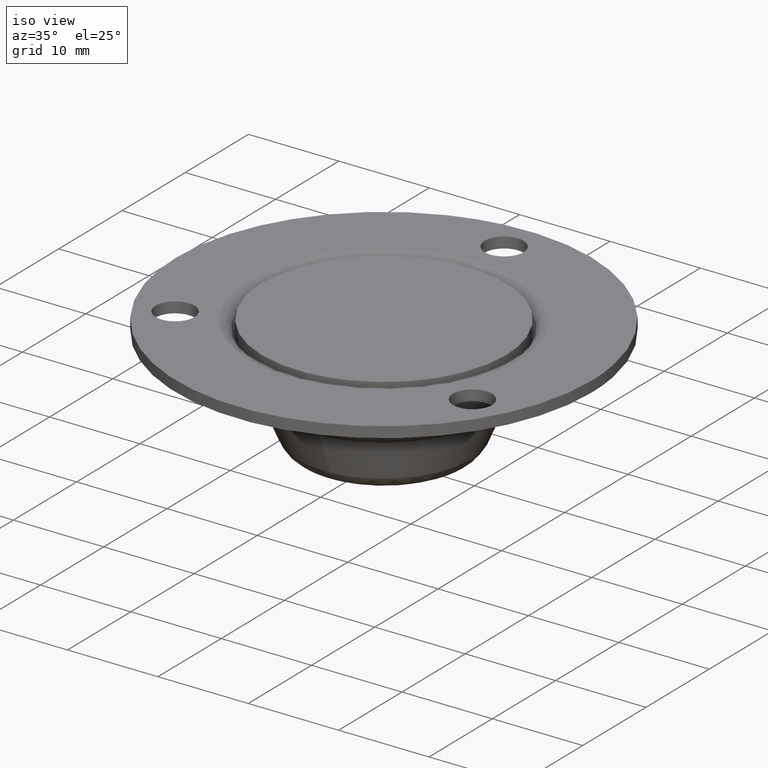
[diagram: clean part render]
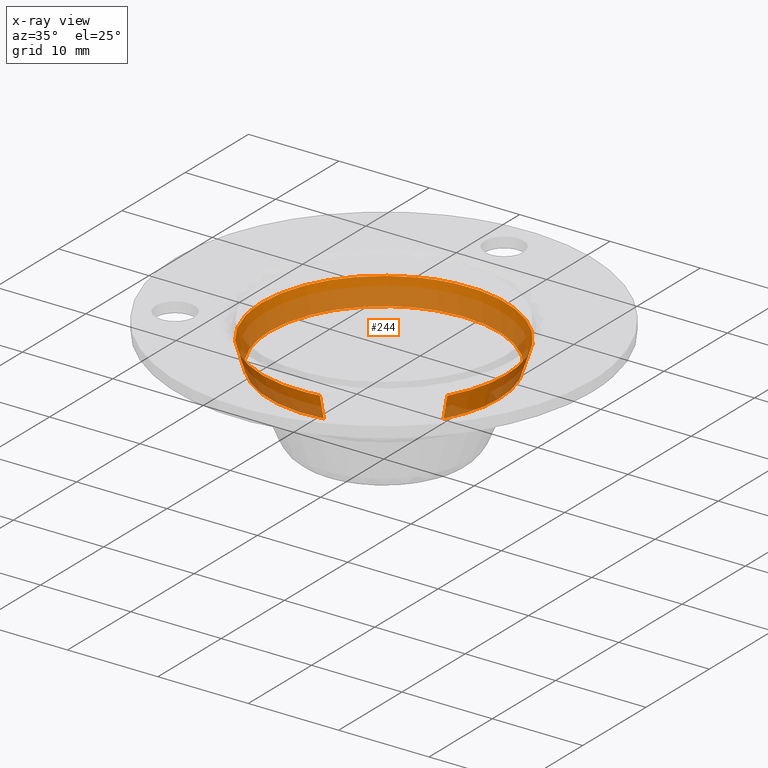
[diagram: x-ray — body ghosted, one internal face saturated and labeled with its STEP entity id]
A machine part, iso view, then the same camera in x-ray: the body is ghosted and one INTERNAL B-rep face — a face not visible from any outside direction — is saturated and labeled: STEP entity #244.
In plain terms, the highlighted face is a freeform B-spline surface patch.
Its self-contained STEP definition (entity closure, byte-faithful):
#44=CARTESIAN_POINT('',(10.977187064408920,-6.288943268795138,8.306542131031732));
#45=CARTESIAN_POINT('',(13.223311896473303,-2.368390737509771,8.306542131031732));
#46=CARTESIAN_POINT('',(12.477563162043880,2.088027974514637,8.306542131031732));
#47=CARTESIAN_POINT('',(10.389535187529244,14.565591136558517,8.306542131031732));
#48=CARTESIAN_POINT('',(-2.088027974514637,12.477563162043880,8.306542131031732));
#49=CARTESIAN_POINT('',(-14.565591136558517,10.389535187529244,8.306542131031732));
#50=CARTESIAN_POINT('',(-12.477563162043880,-2.088027974514637,8.306542131031732));
#51=CARTESIAN_POINT('',(-10.389535187529244,-14.565591136558517,8.306542131031732));
#52=CARTESIAN_POINT('',(2.088027974514637,-12.477563162043880,8.306542131031732));
#53=CARTESIAN_POINT('',(11.732213805062440,-6.721505847034207,11.091048066206749));
#54=CARTESIAN_POINT('',(14.132830338972111,-2.531292064474838,11.091048066206751));
#55=CARTESIAN_POINT('',(13.335787932220351,2.231645546734269,11.091048066206749));
#56=CARTESIAN_POINT('',(11.104142385486078,15.567433478954619,11.091048066206751));
#57=CARTESIAN_POINT('',(-2.231645546734269,13.335787932220351,11.091048066206749));
#58=CARTESIAN_POINT('',(-15.567433478954619,11.104142385486078,11.091048066206751));
#59=CARTESIAN_POINT('',(-13.335787932220351,-2.231645546734269,11.091048066206749));
#60=CARTESIAN_POINT('',(-11.104142385486078,-15.567433478954619,11.091048066206751));
#61=CARTESIAN_POINT('',(2.231645546734269,-13.335787932220351,11.091048066206749));
#69=(BOUNDED_SURFACE()B_SPLINE_SURFACE(2,1,((#44,#53),(#45,#54),(#46,#55),(#47,#56),(#48,#57),(#49,#58),(#50,#59),(#51,#60),(#52,#61)),.UNSPECIFIED.,.F.,.F.,.U.)B_SPLINE_SURFACE_WITH_KNOTS((3,2,2,2,3),(2,2),(0.0,9.857186420862025,32.259882831912087,54.662579242962153,77.065275654012211),(0.0,2.917301675559046),.UNSPECIFIED.)GEOMETRIC_REPRESENTATION_ITEM()RATIONAL_B_SPLINE_SURFACE(((0.855662221768731,0.855662221768731),(0.871126983722081,0.871126983722081),(1.0,1.0),(0.707106781186548,0.707106781186548),(1.0,1.0),(0.707106781186548,0.707106781186548),(1.0,1.0),(0.707106781186548,0.707106781186548),(1.0,1.0)))REPRESENTATION_ITEM('')SURFACE());
#70=CARTESIAN_POINT('',(13.500000000000000,0.0,11.023133287300039));
#71=VERTEX_POINT('',#70);
#72=CARTESIAN_POINT('',(11.713798518704641,-6.710955540248669,11.023133287300190));
#73=VERTEX_POINT('',#72);
#74=CARTESIAN_POINT('',(13.500000000000000,0.0,11.023133287300039));
#75=CARTESIAN_POINT('',(13.500000000000002,-3.593187267129130,11.023133287300043));
#76=CARTESIAN_POINT('',(11.713798518704646,-6.710955540248669,11.023133287300187));
#84=(BOUNDED_CURVE()B_SPLINE_CURVE(2,(#74,#75,#76),.UNSPECIFIED.,.F.,.U.)B_SPLINE_CURVE_WITH_KNOTS((3,3),(0.500000000000000,0.584758082392888),.UNSPECIFIED.)CURVE()GEOMETRIC_REPRESENTATION_ITEM()RATIONAL_B_SPLINE_CURVE((1.0,0.900699729709964,0.868731463346960))REPRESENTATION_ITEM(''));
#85=EDGE_CURVE('',#71,#73,#84,.T.);
#86=ORIENTED_EDGE('',*,*,#85,.T.);
#87=CARTESIAN_POINT('',(10.995153481914500,-6.299236414005121,8.372801501046176));
#88=VERTEX_POINT('',#87);
#89=CARTESIAN_POINT('',(10.995153481914500,-6.299236414005121,8.372801501046176));
#90=CARTESIAN_POINT('',(11.713798518704641,-6.710955540248669,11.023133287300190));
#91=QUASI_UNIFORM_CURVE('',1,(#89,#90),.UNSPECIFIED.,.F.,.U.);
#92=EDGE_CURVE('',#88,#73,#91,.T.);
#93=ORIENTED_EDGE('',*,*,#92,.F.);
#94=CARTESIAN_POINT('',(12.671770968983900,0.0,8.372801501045981));
#95=VERTEX_POINT('',#94);
#96=CARTESIAN_POINT('',(12.671770968983900,0.0,8.372801501045981));
#97=CARTESIAN_POINT('',(12.671770968983898,-3.372744155387764,8.372801501045981));
#98=CARTESIAN_POINT('',(10.995153481914500,-6.299236414005121,8.372801501046176));
#106=(BOUNDED_CURVE()B_SPLINE_CURVE(2,(#96,#97,#98),.UNSPECIFIED.,.F.,.U.)B_SPLINE_CURVE_WITH_KNOTS((3,3),(0.500000000000000,0.584758082392897),.UNSPECIFIED.)CURVE()GEOMETRIC_REPRESENTATION_ITEM()RATIONAL_B_SPLINE_CURVE((1.0,0.900699729709954,0.868731463346954))REPRESENTATION_ITEM(''));
#107=EDGE_CURVE('',#95,#88,#106,.T.);
#108=ORIENTED_EDGE('',*,*,#107,.F.);
#109=CARTESIAN_POINT('',(-2.772597756866573,12.364726962612091,8.372800451916325));
#110=VERTEX_POINT('',#109);
#111=CARTESIAN_POINT('',(-2.772597756866574,12.364726962612094,8.372800451916325));
#112=CARTESIAN_POINT('',(-1.403300198127426,12.671770663252870,8.372800498424237));
#113=CARTESIAN_POINT('',(0.000000064583358,12.671770680966800,8.372800556515717));
#114=CARTESIAN_POINT('',(12.671770997699527,12.671770840923179,8.372801081080546));
#115=CARTESIAN_POINT('',(12.671770968983900,0.0,8.372801501045981));
#123=(BOUNDED_CURVE()B_SPLINE_CURVE(2,(#111,#112,#113,#114,#115),.UNSPECIFIED.,.F.,.U.)B_SPLINE_CURVE_WITH_KNOTS((3,2,3),(0.212563933959278,0.250000000000000,0.500000000000000),.UNSPECIFIED.)CURVE()GEOMETRIC_REPRESENTATION_ITEM()RATIONAL_B_SPLINE_CURVE((0.925417132122978,0.956140920470480,1.0,0.707106781186548,1.0))REPRESENTATION_ITEM(''));
#124=EDGE_CURVE('',#110,#95,#123,.T.);
#125=ORIENTED_EDGE('',*,*,#124,.F.);
#126=CARTESIAN_POINT('',(-12.671770968983900,0.0,8.372801501045981));
#127=VERTEX_POINT('',#126);
#128=CARTESIAN_POINT('',(-12.671770968983900,0.0,8.372801501045981));
#129=CARTESIAN_POINT('',(-12.671770933116170,10.144991472371924,8.372800976481152));
#130=CARTESIAN_POINT('',(-2.772597756866573,12.364726962612091,8.372800451916326));
#138=(BOUNDED_CURVE()B_SPLINE_CURVE(2,(#128,#129,#130),.UNSPECIFIED.,.F.,.U.)B_SPLINE_CURVE_WITH_KNOTS((3,3),(0.0,0.212563933959278),.UNSPECIFIED.)CURVE()GEOMETRIC_REPRESENTATION_ITEM()RATIONAL_B_SPLINE_CURVE((1.0,0.750965860716068,0.925417132122979))REPRESENTATION_ITEM(''));
#139=EDGE_CURVE('',#127,#110,#138,.T.);
#140=ORIENTED_EDGE('',*,*,#139,.F.);
#141=CARTESIAN_POINT('',(-12.503058303315360,-2.060900908406375,8.372801501044785));
#142=VERTEX_POINT('',#141);
#143=CARTESIAN_POINT('',(-12.503058303315361,-2.060900908406375,8.372801501044785));
#144=CARTESIAN_POINT('',(-12.671770968983905,-1.037356163125500,8.372801501045981));
#145=CARTESIAN_POINT('',(-12.671770968983900,0.0,8.372801501045981));
#153=(BOUNDED_CURVE()B_SPLINE_CURVE(2,(#143,#144,#145),.UNSPECIFIED.,.F.,.U.)B_SPLINE_CURVE_WITH_KNOTS((3,3),(0.972006108799167,1.0),.UNSPECIFIED.)CURVE()GEOMETRIC_REPRESENTATION_ITEM()RATIONAL_B_SPLINE_CURVE((0.941751131923223,0.967203116396298,1.0))REPRESENTATION_ITEM(''));
#154=EDGE_CURVE('',#142,#127,#153,.T.);
#155=ORIENTED_EDGE('',*,*,#154,.F.);
#156=CARTESIAN_POINT('',(2.091445455795336,-12.497985252192070,8.372801497030038));
#157=VERTEX_POINT('',#156);
#158=CARTESIAN_POINT('',(2.091445455795336,-12.497985252192068,8.372801497030038));
#159=CARTESIAN_POINT('',(1.052942965410974,-12.671770968983898,8.372801501045981));
#160=CARTESIAN_POINT('',(0.0,-12.671770968983900,8.372801501045981));
#161=CARTESIAN_POINT('',(-10.754050083370176,-12.671770968983902,8.372801501045981));
#162=CARTESIAN_POINT('',(-12.503058303315361,-2.060900908406375,8.372801501044785));
#170=(BOUNDED_CURVE()B_SPLINE_CURVE(2,(#158,#159,#160,#161,#162),.UNSPECIFIED.,.F.,.U.)B_SPLINE_CURVE_WITH_KNOTS((3,2,3),(0.721599481876868,0.750000000000000,0.972006108799168),.UNSPECIFIED.)CURVE()GEOMETRIC_REPRESENTATION_ITEM()RATIONAL_B_SPLINE_CURVE((0.941013273025640,0.966726723323784,1.0,0.739903664790249,0.941751131923224))REPRESENTATION_ITEM(''));
#171=EDGE_CURVE('',#157,#142,#170,.T.);
#172=ORIENTED_EDGE('',*,*,#171,.F.);
#173=CARTESIAN_POINT('',(2.228142679132356,-13.314855620751210,11.023133287302530));
#174=VERTEX_POINT('',#173);
#175=CARTESIAN_POINT('',(2.091445455795336,-12.497985252192070,8.372801497030038));
#176=CARTESIAN_POINT('',(2.228142679132356,-13.314855620751210,11.023133287302530));
#177=QUASI_UNIFORM_CURVE('',1,(#175,#176),.UNSPECIFIED.,.F.,.U.);
#178=EDGE_CURVE('',#157,#174,#177,.T.);
#179=ORIENTED_EDGE('',*,*,#178,.T.);
#180=CARTESIAN_POINT('',(0.824138312267012,-13.474820816692320,11.023133287299981));
#181=VERTEX_POINT('',#180);
#182=CARTESIAN_POINT('',(2.228142679132356,-13.314855620751208,11.023133287302533));
#183=CARTESIAN_POINT('',(1.530332256554981,-13.431629037510131,11.023133287300048));
#184=CARTESIAN_POINT('',(0.824138312267012,-13.474820816692322,11.023133287299984));
#192=(BOUNDED_CURVE()B_SPLINE_CURVE(2,(#182,#183,#184),.UNSPECIFIED.,.F.,.U.)B_SPLINE_CURVE_WITH_KNOTS((3,3),(0.721599481758263,0.739333179563636),.UNSPECIFIED.)CURVE()GEOMETRIC_REPRESENTATION_ITEM()RATIONAL_B_SPLINE_CURVE((0.941013272810874,0.957069126249318,0.976072507435347))REPRESENTATION_ITEM(''));
#193=EDGE_CURVE('',#174,#181,#192,.T.);
#194=ORIENTED_EDGE('',*,*,#193,.T.);
#195=CARTESIAN_POINT('',(-13.500000000000000,0.0,11.023133287300039));
#196=VERTEX_POINT('',#195);
#197=CARTESIAN_POINT('',(0.824138312267012,-13.474820816692322,11.023133287299984));
#198=CARTESIAN_POINT('',(0.412453795011837,-13.499999999999998,11.023133287300046));
#199=CARTESIAN_POINT('',(0.0,-13.500000000000000,11.023133287300039));
#200=CARTESIAN_POINT('',(-13.500000000000000,-13.500000000000000,11.023133287300041));
#201=CARTESIAN_POINT('',(-13.500000000000000,0.0,11.023133287300039));
#209=(BOUNDED_CURVE()B_SPLINE_CURVE(2,(#197,#198,#199,#200,#201),.UNSPECIFIED.,.F.,.U.)B_SPLINE_CURVE_WITH_KNOTS((3,2,3),(0.739333179563636,0.750000000000000,1.0),.UNSPECIFIED.)CURVE()GEOMETRIC_REPRESENTATION_ITEM()RATIONAL_B_SPLINE_CURVE((0.976072507435347,0.987503042511553,1.0,0.707106781186548,1.0))REPRESENTATION_ITEM(''));
#210=EDGE_CURVE('',#181,#196,#209,.T.);
#211=ORIENTED_EDGE('',*,*,#210,.T.);
#212=CARTESIAN_POINT('',(-1.593447977863204,13.405630292591219,11.023133287300411));
#213=VERTEX_POINT('',#212);
#214=CARTESIAN_POINT('',(-13.500000000000000,0.0,11.023133287300039));
#215=CARTESIAN_POINT('',(-13.499999999999996,11.990368881616748,11.023133287300039));
#216=CARTESIAN_POINT('',(-1.593447977863203,13.405630292591223,11.023133287300409));
#224=(BOUNDED_CURVE()B_SPLINE_CURVE(2,(#214,#215,#216),.UNSPECIFIED.,.F.,.U.)B_SPLINE_CURVE_WITH_KNOTS((3,3),(0.0,0.229562652407425),.UNSPECIFIED.)CURVE()GEOMETRIC_REPRESENTATION_ITEM()RATIONAL_B_SPLINE_CURVE((1.0,0.731050623268142,0.956027104823397))REPRESENTATION_ITEM(''));
#225=EDGE_CURVE('',#196,#213,#224,.T.);
#226=ORIENTED_EDGE('',*,*,#225,.T.);
#227=CARTESIAN_POINT('',(-1.593447977863203,13.405630292591223,11.023133287300409));
#228=CARTESIAN_POINT('',(-0.799518445292945,13.500000000000000,11.023133287300043));
#229=CARTESIAN_POINT('',(0.0,13.500000000000000,11.023133287300039));
#230=CARTESIAN_POINT('',(13.500000000000000,13.500000000000000,11.023133287300041));
#231=CARTESIAN_POINT('',(13.500000000000000,0.0,11.023133287300039));
#239=(BOUNDED_CURVE()B_SPLINE_CURVE(2,(#227,#228,#229,#230,#231),.UNSPECIFIED.,.F.,.U.)B_SPLINE_CURVE_WITH_KNOTS((3,2,3),(0.229562652407425,0.250000000000000,0.500000000000000),.UNSPECIFIED.)CURVE()GEOMETRIC_REPRESENTATION_ITEM()RATIONAL_B_SPLINE_CURVE((0.956027104823397,0.976056157918405,1.0,0.707106781186548,1.0))REPRESENTATION_ITEM(''));
#240=EDGE_CURVE('',#213,#71,#239,.T.);
#241=ORIENTED_EDGE('',*,*,#240,.T.);
#242=EDGE_LOOP('',(#86,#93,#108,#125,#140,#155,#172,#179,#194,#211,#226,#241));
#243=FACE_OUTER_BOUND('',#242,.T.);
#244=ADVANCED_FACE('',(#243),#69,.T.);